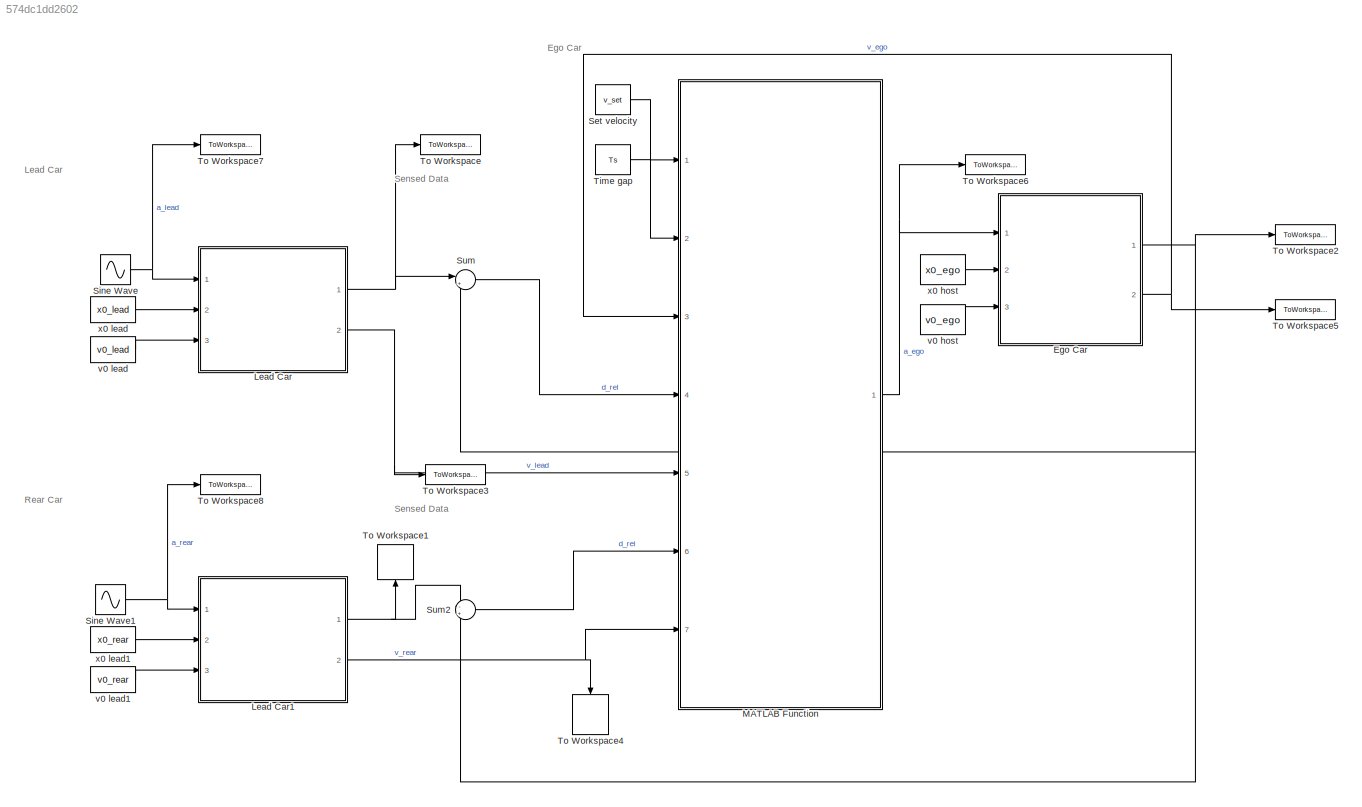
MODEL slx_574dc1dd2602
KIND model
CONFIG AbsTol = auto
CONFIG EnableMultiTasking = off
CONFIG FixedStep = auto
CONFIG MaxStep = auto
CONFIG MinStep = auto
CONFIG RelTol = 1e-3
CONFIG SampleTimeConstraint = Unconstrained
CONFIG Solver = FixedStepAuto
CONFIG SolverName = FixedStepAuto
CONFIG StartTime = 0.0
CONFIG StopTime = T
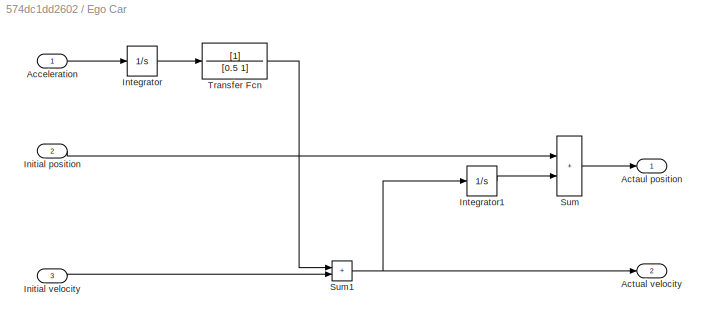
BLOCK [SubSystem] Ego Car
  Ports = [3, 2]
  RequestExecContextInheritance = off
BLOCK [Inport] Ego Car/Acceleration
BLOCK [Outport] Ego Car/Actaul position
  VectorParamsAs1DForOutWhenUnconnected = off
BLOCK [Outport] Ego Car/Actual velocity
  Port = 2
  VectorParamsAs1DForOutWhenUnconnected = off
BLOCK [Inport] Ego Car/Initial position
  Port = 2
BLOCK [Inport] Ego Car/Initial velocity
  Port = 3
BLOCK [Integrator] Ego Car/Integrator
  Ports = [1, 1]
BLOCK [Integrator] Ego Car/Integrator1
  Ports = [1, 1]
BLOCK [Sum] Ego Car/Sum
  IconShape = rectangular
  Ports = [2, 1]
BLOCK [Sum] Ego Car/Sum1
  IconShape = rectangular
  Ports = [2, 1]
BLOCK [TransferFcn] Ego Car/Transfer Fcn
  Denominator = [0.5 1]
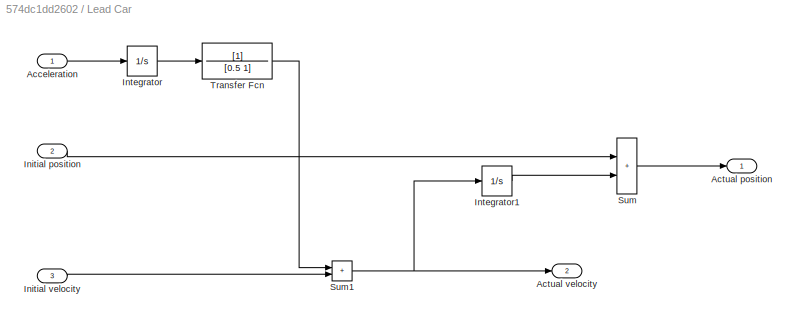
BLOCK [SubSystem] Lead Car
  Ports = [3, 2]
  RequestExecContextInheritance = off
BLOCK [Inport] Lead Car/Acceleration
BLOCK [Outport] Lead Car/Actual position
  VectorParamsAs1DForOutWhenUnconnected = off
BLOCK [Outport] Lead Car/Actual velocity
  Port = 2
  VectorParamsAs1DForOutWhenUnconnected = off
BLOCK [Inport] Lead Car/Initial position
  Port = 2
BLOCK [Inport] Lead Car/Initial velocity
  Port = 3
BLOCK [Integrator] Lead Car/Integrator
  Ports = [1, 1]
BLOCK [Integrator] Lead Car/Integrator1
  Ports = [1, 1]
BLOCK [Sum] Lead Car/Sum
  IconShape = rectangular
  Ports = [2, 1]
BLOCK [Sum] Lead Car/Sum1
  IconShape = rectangular
  Ports = [2, 1]
BLOCK [TransferFcn] Lead Car/Transfer Fcn
  Denominator = [0.5 1]
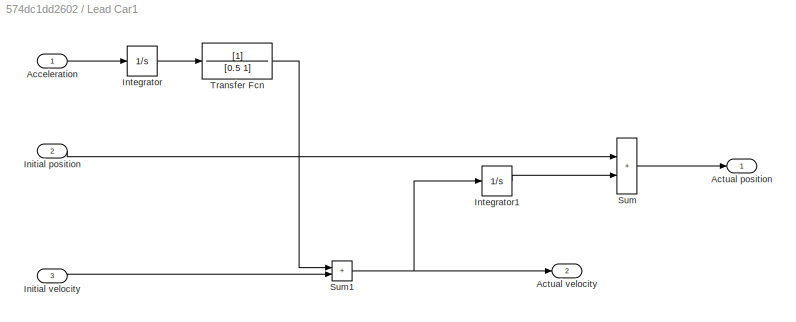
BLOCK [SubSystem] Lead Car1
  Ports = [3, 2]
  RequestExecContextInheritance = off
BLOCK [Inport] Lead Car1/Acceleration
BLOCK [Outport] Lead Car1/Actual position
  VectorParamsAs1DForOutWhenUnconnected = off
BLOCK [Outport] Lead Car1/Actual velocity
  Port = 2
  VectorParamsAs1DForOutWhenUnconnected = off
BLOCK [Inport] Lead Car1/Initial position
  Port = 2
BLOCK [Inport] Lead Car1/Initial velocity
  Port = 3
BLOCK [Integrator] Lead Car1/Integrator
  Ports = [1, 1]
BLOCK [Integrator] Lead Car1/Integrator1
  Ports = [1, 1]
BLOCK [Sum] Lead Car1/Sum
  IconShape = rectangular
  Ports = [2, 1]
BLOCK [Sum] Lead Car1/Sum1
  IconShape = rectangular
  Ports = [2, 1]
BLOCK [TransferFcn] Lead Car1/Transfer Fcn
  Denominator = [0.5 1]
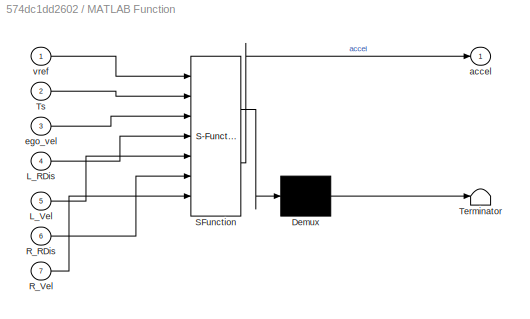
BLOCK [SubSystem] MATLAB Function
  ErrorFcn = Stateflow.Translate.translate
  PermitHierarchicalResolution = ExplicitOnly
  Ports = [7, 1]
  RequestExecContextInheritance = off
  SFBlockType = MATLAB Function
  TreatAsAtomicUnit = on
BLOCK [Demux] MATLAB Function/ Demux 
  Outputs = 1
  Ports = [1, 1]
BLOCK [S-Function] MATLAB Function/ SFunction 
  EnableBusSupport = on
  FunctionName = sf_sfun
  PortCounts = [7 2]
  Ports = [7, 2]
  SFcnIsStateOwnerBlock = off
  SFunctionDeploymentMode = off
  Tag = Stateflow S-Function 2
BLOCK [Terminator] MATLAB Function/ Terminator 
BLOCK [Inport] MATLAB Function/L_RDis
  Port = 4
BLOCK [Inport] MATLAB Function/L_Vel
  Port = 5
BLOCK [Inport] MATLAB Function/R_RDis
  Port = 6
BLOCK [Inport] MATLAB Function/R_Vel
  Port = 7
BLOCK [Inport] MATLAB Function/Ts
  Port = 2
BLOCK [Outport] MATLAB Function/accel
BLOCK [Inport] MATLAB Function/ego_vel
  Port = 3
BLOCK [Inport] MATLAB Function/vref
BLOCK [Constant] Set velocity
  SampleTime = Ts
  Value = v_set
BLOCK [Sin] Sine Wave
  Frequency = 0.3
  Ports = [0, 1]
  SampleTime = Ts
BLOCK [Sin] Sine Wave1
  Frequency = 0.3
  Ports = [0, 1]
  SampleTime = Ts
BLOCK [Sum] Sum
  Inputs = |+-
  Ports = [2, 1]
BLOCK [Sum] Sum2
  Inputs = -+
  Ports = [2, 1]
BLOCK [Constant] Time gap
  SampleTime = Ts
  Value = Ts
BLOCK [ToWorkspace] To Workspace
  FixptAsFi = on
  MaxDataPoints = inf
  Ports = [1]
  SampleTime = -1
  SaveFormat = Timeseries
  VariableName = Lp
BLOCK [ToWorkspace] To Workspace1
  FixptAsFi = on
  MaxDataPoints = inf
  NameLocation = right
  Ports = [1]
  SampleTime = -1
  SaveFormat = Timeseries
  VariableName = Rp
BLOCK [ToWorkspace] To Workspace2
  FixptAsFi = on
  MaxDataPoints = inf
  Ports = [1]
  SampleTime = -1
  SaveFormat = Timeseries
  VariableName = Ep
BLOCK [ToWorkspace] To Workspace3
  FixptAsFi = on
  MaxDataPoints = inf
  Ports = [1]
  SampleTime = -1
  SaveFormat = Timeseries
  VariableName = Lv
BLOCK [ToWorkspace] To Workspace4
  FixptAsFi = on
  MaxDataPoints = inf
  NameLocation = left
  Ports = [1]
  SampleTime = -1
  SaveFormat = Timeseries
  VariableName = Rv
BLOCK [ToWorkspace] To Workspace5
  FixptAsFi = on
  MaxDataPoints = inf
  Ports = [1]
  SampleTime = -1
  SaveFormat = Timeseries
  VariableName = Ev
BLOCK [ToWorkspace] To Workspace6
  FixptAsFi = on
  MaxDataPoints = inf
  Ports = [1]
  SampleTime = -1
  SaveFormat = Timeseries
  VariableName = Ea
BLOCK [ToWorkspace] To Workspace7
  FixptAsFi = on
  MaxDataPoints = inf
  Ports = [1]
  SampleTime = -1
  SaveFormat = Timeseries
  VariableName = La
BLOCK [ToWorkspace] To Workspace8
  FixptAsFi = on
  MaxDataPoints = inf
  Ports = [1]
  SampleTime = -1
  SaveFormat = Timeseries
  VariableName = Ra
BLOCK [Constant] v0 host
  SampleTime = Ts
  Value = v0_ego
BLOCK [Constant] v0 lead
  SampleTime = Ts
  Value = v0_lead
BLOCK [Constant] v0 lead1
  SampleTime = Ts
  Value = v0_rear
BLOCK [Constant] x0 host
  SampleTime = Ts
  Value = x0_ego
BLOCK [Constant] x0 lead
  SampleTime = Ts
  Value = x0_lead
BLOCK [Constant] x0 lead1
  SampleTime = Ts
  Value = x0_rear
ANNOTATION (root): Ego Car
ANNOTATION (root): Lead Car
ANNOTATION (root): Rear Car
ANNOTATION (root): Sensed Data
LINE Ego Car/Acceleration:1 -> Ego Car/Integrator:1
LINE Ego Car/Initial position:1 -> Ego Car/Sum:1
LINE Ego Car/Initial velocity:1 -> Ego Car/Sum1:2
LINE Ego Car/Integrator1:1 -> Ego Car/Sum:2
LINE Ego Car/Integrator:1 -> Ego Car/Transfer Fcn:1
NET Ego Car/Sum1:1 -> Ego Car/Actual velocity:1, Ego Car/Integrator1:1
LINE Ego Car/Sum:1 -> Ego Car/Actaul position:1
LINE Ego Car/Transfer Fcn:1 -> Ego Car/Sum1:1
NET Ego Car:1 -> Sum2:2, Sum:2, To Workspace2:1
NET Ego Car:2 -> MATLAB Function:3, To Workspace5:1
LINE Lead Car/Acceleration:1 -> Lead Car/Integrator:1
LINE Lead Car/Initial position:1 -> Lead Car/Sum:1
LINE Lead Car/Initial velocity:1 -> Lead Car/Sum1:2
LINE Lead Car/Integrator1:1 -> Lead Car/Sum:2
LINE Lead Car/Integrator:1 -> Lead Car/Transfer Fcn:1
NET Lead Car/Sum1:1 -> Lead Car/Actual velocity:1, Lead Car/Integrator1:1
LINE Lead Car/Sum:1 -> Lead Car/Actual position:1
LINE Lead Car/Transfer Fcn:1 -> Lead Car/Sum1:1
LINE Lead Car1/Acceleration:1 -> Lead Car1/Integrator:1
LINE Lead Car1/Initial position:1 -> Lead Car1/Sum:1
LINE Lead Car1/Initial velocity:1 -> Lead Car1/Sum1:2
LINE Lead Car1/Integrator1:1 -> Lead Car1/Sum:2
LINE Lead Car1/Integrator:1 -> Lead Car1/Transfer Fcn:1
NET Lead Car1/Sum1:1 -> Lead Car1/Actual velocity:1, Lead Car1/Integrator1:1
LINE Lead Car1/Sum:1 -> Lead Car1/Actual position:1
LINE Lead Car1/Transfer Fcn:1 -> Lead Car1/Sum1:1
NET Lead Car1:1 -> Sum2:1, To Workspace1:1
NET Lead Car1:2 -> MATLAB Function:7, To Workspace4:1
NET Lead Car:1 -> Sum:1, To Workspace:1
NET Lead Car:2 -> MATLAB Function:5, To Workspace3:1
NET MATLAB Function:1 -> Ego Car:1, To Workspace6:1
LINE Set velocity:1 -> MATLAB Function:1
NET Sine Wave1:1 -> Lead Car1:1, To Workspace8:1
NET Sine Wave:1 -> Lead Car:1, To Workspace7:1
LINE Sum2:1 -> MATLAB Function:6
LINE Sum:1 -> MATLAB Function:4
LINE Time gap:1 -> MATLAB Function:2
LINE v0 host:1 -> Ego Car:3
LINE v0 lead1:1 -> Lead Car1:3
LINE v0 lead:1 -> Lead Car:3
LINE x0 host:1 -> Ego Car:2
LINE x0 lead1:1 -> Lead Car1:2
LINE x0 lead:1 -> Lead Car:2
note: NET lines group one-source signal fan-out (src -> all destinations, sorted); 1:1 wires keep LINE
CHART MATLAB Function states=1 transitions=1
  STATE_LABEL 'eML_blk_kernel()'
  STATE_LABEL "SCRIPT:\nfunction accel= impPathV2(vref,Ts,ego_vel,L_RDis,L_Vel,R_RDis,R_Vel)\n% #1 From a finite acceleration action space select the an acceleration\n% #2 Choose and acceleration and check cost function over next 10 sec\na=3.5; %Assume a max acceration of a m/s^2\na_space=-1.2*a:0.01:a;\nT=1;    %Projection time of T seconds\nt=0:Ts:T;\nMt=repmat(t',1,length(a_space));\n\neps=10^-6;\n\n%Ego Velocity matrix\n...<+495ch>"
CHART  states=0 transitions=0
